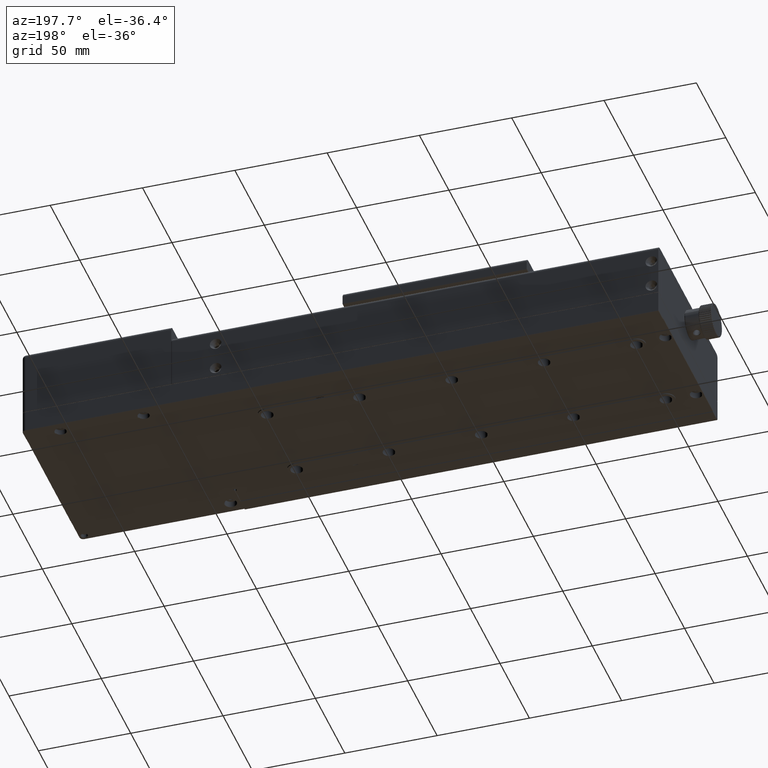
[diagram: clean part render]
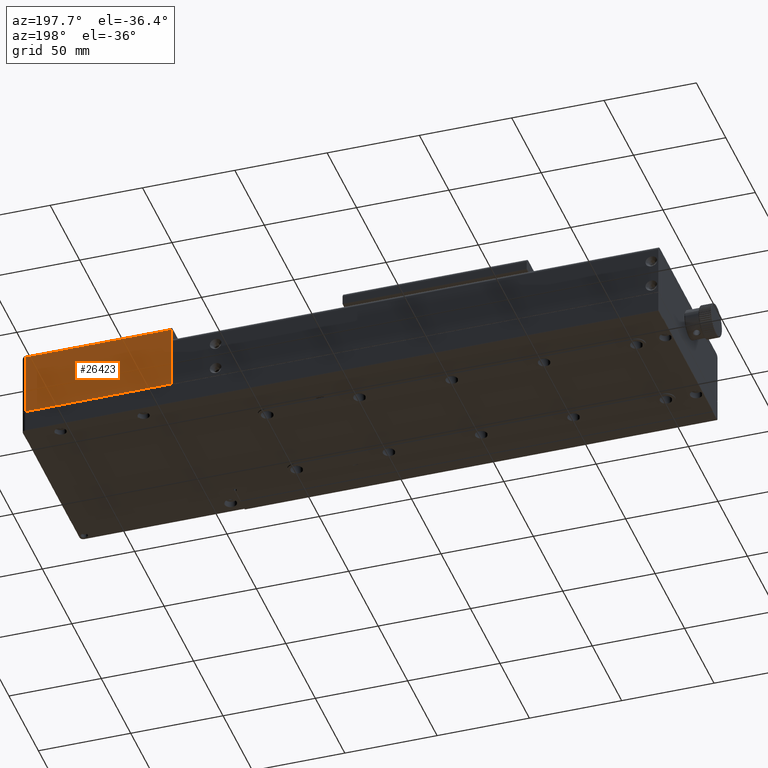
[diagram: same view with one face highlighted and labeled with its STEP entity id]
A machine part, auxiliary view. The second image highlights one B-rep face of the part: STEP entity #26423.
In plain terms, the highlighted planar face has unit normal (-0, -1, -0).
Its self-contained STEP definition (entity closure, byte-faithful):
#552 = DIRECTION ( 'NONE',  ( 1.026095422780651895E-16, 0.000000000000000000, -1.000000000000000000 ) ) ;
#1954 = DIRECTION ( 'NONE',  ( -1.000000000000000000, 3.089426096435059871E-16, 0.000000000000000000 ) ) ;
#3480 = CARTESIAN_POINT ( 'NONE',  ( 95.03920879970989688, 59.99424858742460032, 42.00000000000000000 ) ) ;
#5979 = LINE ( 'NONE', #34015, #22034 ) ;
#8181 = FACE_OUTER_BOUND ( 'NONE', #17098, .T. ) ;
#8424 = CARTESIAN_POINT ( 'NONE',  ( 95.03920879970989688, 59.99424858742460032, 42.00000000000000000 ) ) ;
#9362 = LINE ( 'NONE', #3480, #39121 ) ;
#11793 = LINE ( 'NONE', #23601, #68370 ) ;
#12899 = DIRECTION ( 'NONE',  ( -1.000000000000000000, 3.089426096435059871E-16, -1.026095422780651895E-16 ) ) ;
#14087 = PLANE ( 'NONE',  #65003 ) ;
#14466 = VERTEX_POINT ( 'NONE', #58383 ) ;
#17098 = EDGE_LOOP ( 'NONE', ( #56720, #46178, #47466, #33328 ) ) ;
#21334 = VERTEX_POINT ( 'NONE', #31736 ) ;
#21716 = VERTEX_POINT ( 'NONE', #8424 ) ;
#22034 = VECTOR ( 'NONE', #28846, 1000.000000000000000 ) ;
#23601 = CARTESIAN_POINT ( 'NONE',  ( 95.03920879970989688, 59.99424858742460032, 7.200000000000000178 ) ) ;
#26423 = ADVANCED_FACE ( 'NONE', ( #8181 ), #14087, .F. ) ;
#27299 = EDGE_CURVE ( 'NONE', #21716, #55417, #9362, .T. ) ;
#28846 = DIRECTION ( 'NONE',  ( 1.000000000000000000, -3.089426096435059871E-16, 1.026095422780651895E-16 ) ) ;
#31736 = CARTESIAN_POINT ( 'NONE',  ( 174.0392087997099964, 59.99424858742450084, 7.200000000000000178 ) ) ;
#33328 = ORIENTED_EDGE ( 'NONE', *, *, #37292, .T. ) ;
#34015 = CARTESIAN_POINT ( 'NONE',  ( 176.0392087997099964, 59.99424858742450084, 42.00000000000000000 ) ) ;
#37292 = EDGE_CURVE ( 'NONE', #21716, #14466, #5979, .T. ) ;
#39121 = VECTOR ( 'NONE', #58409, 1000.000000000000000 ) ;
#43307 = EDGE_CURVE ( 'NONE', #14466, #21334, #61737, .T. ) ;
#45122 = VECTOR ( 'NONE', #552, 1000.000000000000000 ) ;
#46178 = ORIENTED_EDGE ( 'NONE', *, *, #56954, .T. ) ;
#46552 = DIRECTION ( 'NONE',  ( -3.089426096435059871E-16, -1.000000000000000000, -4.744241484825849872E-32 ) ) ;
#47466 = ORIENTED_EDGE ( 'NONE', *, *, #27299, .F. ) ;
#47637 = CARTESIAN_POINT ( 'NONE',  ( 176.0392087997099964, 59.99424858742450084, 7.000000000000000000 ) ) ;
#50661 = CARTESIAN_POINT ( 'NONE',  ( 174.0392087997099964, 59.99424858742450084, 7.000000000000000000 ) ) ;
#55417 = VERTEX_POINT ( 'NONE', #59919 ) ;
#56720 = ORIENTED_EDGE ( 'NONE', *, *, #43307, .T. ) ;
#56954 = EDGE_CURVE ( 'NONE', #21334, #55417, #11793, .T. ) ;
#58383 = CARTESIAN_POINT ( 'NONE',  ( 174.0392087997099964, 59.99424858742450084, 42.00000000000000000 ) ) ;
#58409 = DIRECTION ( 'NONE',  ( 1.026095422780651895E-16, 0.000000000000000000, -1.000000000000000000 ) ) ;
#59919 = CARTESIAN_POINT ( 'NONE',  ( 95.03920879970989688, 59.99424858742460032, 7.200000000000000178 ) ) ;
#61737 = LINE ( 'NONE', #50661, #45122 ) ;
#65003 = AXIS2_PLACEMENT_3D ( 'NONE', #47637, #46552, #1954 ) ;
#68370 = VECTOR ( 'NONE', #12899, 1000.000000000000000 ) ;